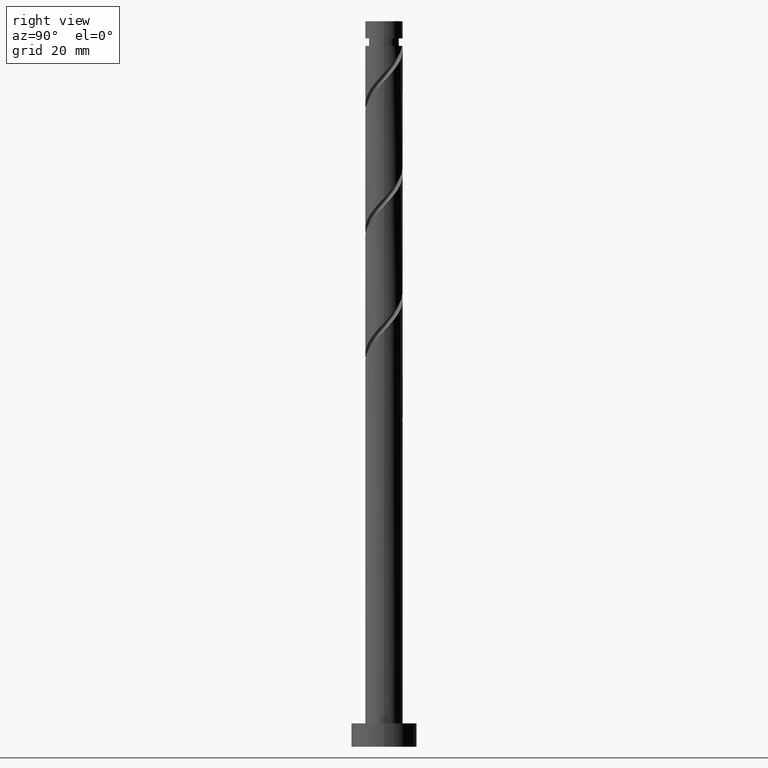
[diagram: clean part render]
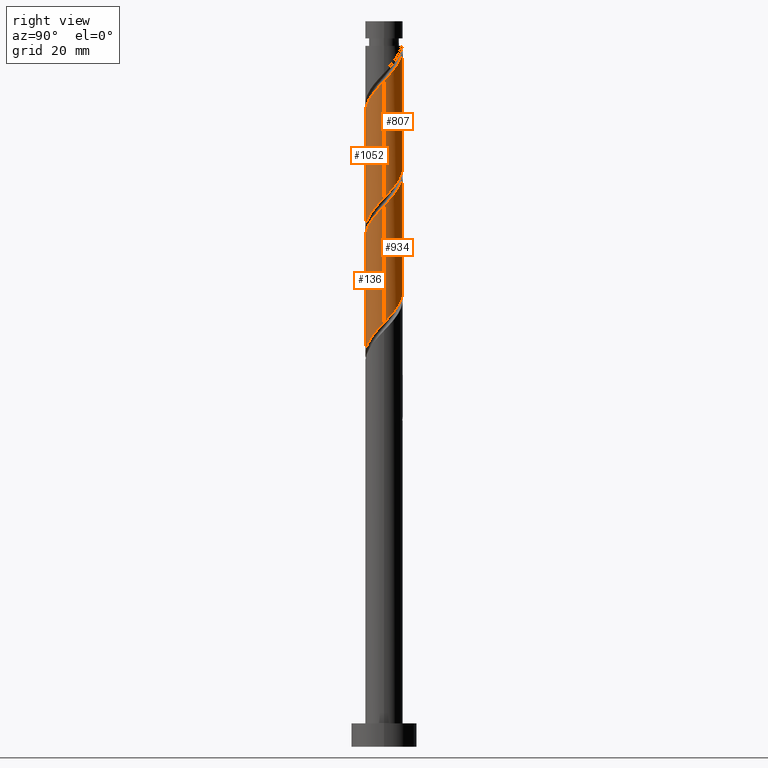
[diagram: same view with one multi-face feature highlighted, each face labeled with its STEP entity id]
A machine part, right view. The highlighted faces form ONE feature: a constant-radius fillet chain: 4 tangent blend faces with common blend radius 4 mm. The faces share edges in the B-rep.
Their STEP definitions:
[1] entity #136 (Cylinder):
#34 = DIRECTION ( 'NONE',  ( -0.000000000000000000, -0.000000000000000000, -1.000000000000000000 ) ) ;
#46 = DIRECTION ( 'NONE',  ( -1.000000000000000000, 0.000000000000000000, 0.000000000000000000 ) ) ;
#58 = CARTESIAN_POINT ( 'NONE',  ( -0.3406448590276058841, -3.985468740313755642, 108.5207611527799685 ) ) ;
#66 = ORIENTED_EDGE ( 'NONE', *, *, #1090, .F. ) ;
#70 = LINE ( 'NONE', #1353, #775 ) ;
#73 = CARTESIAN_POINT ( 'NONE',  ( 3.896423597087605994, -0.9043689247530174447, 114.5813672133860308 ) ) ;
#88 = CARTESIAN_POINT ( 'NONE',  ( 0.3406448590276037192, -3.985468740313750313, 84.27833691035573338 ) ) ;
#107 = CARTESIAN_POINT ( 'NONE',  ( 2.441275768804707980, -3.168623142730448095, 86.70257933459815547 ) ) ;
#119 = CARTESIAN_POINT ( 'NONE',  ( 0.9136687552802118528, -3.936491403624601926, 84.88439751641635667 ) ) ;
#129 = CYLINDRICAL_SURFACE ( 'NONE', #1137, 4.000000000000000000 ) ;
#136 = ADVANCED_FACE ( 'NONE', ( #1278 ), #129, .T. ) ;
#176 = CARTESIAN_POINT ( 'NONE',  ( 4.000000000000005329, 2.557616340297881178E-15, 115.5500945522669980 ) ) ;
#181 = DIRECTION ( 'NONE',  ( -0.000000000000000000, -0.000000000000000000, -1.000000000000000000 ) ) ;
#201 = CARTESIAN_POINT ( 'NONE',  ( 4.000000000000008882, -0.4581157095404825852, 115.0641345992956843 ) ) ;
#237 = CARTESIAN_POINT ( 'NONE',  ( 4.000000000000000888, -0.1151021060952927416, 90.46023883948387834 ) ) ;
#251 = CARTESIAN_POINT ( 'NONE',  ( -3.766394975944543422, -1.464590062224028433, 78.82379145581029434 ) ) ;
#307 = VERTEX_POINT ( 'NONE', #386 ) ;
#337 = CARTESIAN_POINT ( 'NONE',  ( 1.359600862145592615, -3.805553922997109595, 110.3389429709617957 ) ) ;
#339 = CARTESIAN_POINT ( 'NONE',  ( -4.000000000000000000, 0.000000000000000000, 155.0000000000000000 ) ) ;
#386 = CARTESIAN_POINT ( 'NONE',  ( 4.000000000000005329, 2.557616340297881178E-15, 115.5500945522669980 ) ) ;
#429 = CARTESIAN_POINT ( 'NONE',  ( 0.000000000000000000, 0.000000000000000000, 155.0000000000000000 ) ) ;
#431 = CARTESIAN_POINT ( 'NONE',  ( -1.985696539029938146, -3.519625607940459311, 106.7025793345981839 ) ) ;
#434 =( BOUNDED_CURVE ( )  B_SPLINE_CURVE ( 2, ( #502, #237, #858, #1608, #870, #893, #995, #1375, #107, #728, #616, #119, #88, #1395, #1141, #1238, #1485, #1127, #1117, #1493, #748, #251, #1257, #763, #1270 ),
 .UNSPECIFIED., .F., .T. ) 
 B_SPLINE_CURVE_WITH_KNOTS ( ( 3, 2, 2, 2, 2, 2, 2, 2, 2, 2, 2, 2, 3 ),
 ( 0.8045252162417513286, 0.8068181818181817677, 0.8181818181818182323, 0.8295454545454545858, 0.8409090909090909394, 0.8522727272727272929, 0.8636363636363636465, 0.8750000000000000000, 0.8863636363636363535, 0.8977272727272727071, 0.9090909090909090606, 0.9204545454545454142, 0.9295252162417513286 ),
 .UNSPECIFIED. ) 
 CURVE ( )  GEOMETRIC_REPRESENTATION_ITEM ( )  RATIONAL_B_SPLINE_CURVE ( ( 0.9061101570135567940, 0.9072237824201390133, 0.9090909090909164991, 0.8998376744372188485, 0.9090909090909164991, 0.8998376744372188485, 0.9090909090909164991, 0.8998376744372188485, 0.9090909090909164991, 0.8998376744372188485, 0.9090909090909164991, 0.8998376744372188485, 0.9090909090909164991, 0.8998376744372188485, 0.9090909090909164991, 0.8998376744372188485, 0.9090909090909164991, 0.8998376744372188485, 0.9090909090909164991, 0.8998376744372188485, 0.9090909090909164991, 0.8998376744372188485, 0.9090909090909164991, 0.9017048011079962233, 0.9061101570135567940 ) ) 
 REPRESENTATION_ITEM ( '' )  );
#445 = CARTESIAN_POINT ( 'NONE',  ( -2.896854998579486917, -2.817620677520442651, 105.4904581224769515 ) ) ;
#459 = ORIENTED_EDGE ( 'NONE', *, *, #1398, .T. ) ;
#463 = CARTESIAN_POINT ( 'NONE',  ( 2.788941361696814614, -2.867369191613936330, 112.1571247891436087 ) ) ;
#468 = VERTEX_POINT ( 'NONE', #1578 ) ;
#482 = VERTEX_POINT ( 'NONE', #1568 ) ;
#502 = CARTESIAN_POINT ( 'NONE',  ( 4.000000000000000888, -4.606700776676913527E-15, 90.58233684420208931 ) ) ;
#543 = EDGE_CURVE ( 'NONE', #307, #468, #70, .T. ) ;
#583 = CARTESIAN_POINT ( 'NONE',  ( -4.000000000000005329, -2.752055009443334096E-15, 102.2167612189336268 ) ) ;
#599 = CARTESIAN_POINT ( 'NONE',  ( -1.449682647155075665, -3.728058505782533505, 107.3086399406587930 ) ) ;
#616 = CARTESIAN_POINT ( 'NONE',  ( 1.449682647155072557, -3.728058505782528620, 85.49045812247693732 ) ) ;
#660 = ORIENTED_EDGE ( 'NONE', *, *, #736, .F. ) ;
#677 = VERTEX_POINT ( 'NONE', #1248 ) ;
#688 = CARTESIAN_POINT ( 'NONE',  ( -3.573327494404169524, -1.887348876843109702, 104.2783369103557334 ) ) ;
#719 = CARTESIAN_POINT ( 'NONE',  ( -4.000000000000006217, -0.1151021060952855390, 102.3388592236518519 ) ) ;
#728 = CARTESIAN_POINT ( 'NONE',  ( 1.985696539029934149, -3.519625607940456202, 86.09651872853757482 ) ) ;
#736 = EDGE_CURVE ( 'NONE', #468, #677, #434, .T. ) ;
#740 =( BOUNDED_CURVE ( )  B_SPLINE_CURVE ( 2, ( #583, #719, #834, #1356, #1340, #688, #1592, #445, #860, #431, #599, #973, #58, #1215, #1456, #337, #1221, #1101, #463, #1611, #1471, #827, #73, #201, #176 ),
 .UNSPECIFIED., .F., .T. ) 
 B_SPLINE_CURVE_WITH_KNOTS ( ( 3, 2, 2, 2, 2, 2, 2, 2, 2, 2, 2, 2, 3 ),
 ( 0.3045252162417512176, 0.3068181818181817677, 0.3181818181818182323, 0.3295454545454545858, 0.3409090909090909394, 0.3522727272727272929, 0.3636363636363636465, 0.3750000000000000000, 0.3863636363636363535, 0.3977272727272727071, 0.4090909090909090606, 0.4204545454545454142, 0.4295252162417514952 ),
 .UNSPECIFIED. ) 
 CURVE ( )  GEOMETRIC_REPRESENTATION_ITEM ( )  RATIONAL_B_SPLINE_CURVE ( ( 0.9061101570135621230, 0.9072237824201443424, 0.9090909090909219392, 0.8998376744372241776, 0.9090909090909219392, 0.8998376744372241776, 0.9090909090909219392, 0.8998376744372241776, 0.9090909090909219392, 0.8998376744372241776, 0.9090909090909219392, 0.8998376744372241776, 0.9090909090909219392, 0.8998376744372241776, 0.9090909090909219392, 0.8998376744372241776, 0.9090909090909219392, 0.8998376744372241776, 0.9090909090909219392, 0.8998376744372241776, 0.9090909090909219392, 0.8998376744372241776, 0.9090909090909219392, 0.9017048011080015524, 0.9061101570135624561 ) ) 
 REPRESENTATION_ITEM ( '' )  );
#748 = CARTESIAN_POINT ( 'NONE',  ( -3.483800894132676351, -1.965485011400587068, 79.42985206187090341 ) ) ;
#763 = CARTESIAN_POINT ( 'NONE',  ( -4.000000000000001776, -0.4581157095404894686, 77.73496346384007438 ) ) ;
#775 = VECTOR ( 'NONE', #34, 1000.000000000000000 ) ;
#827 = CARTESIAN_POINT ( 'NONE',  ( 3.766394975944548751, -1.464590062224029987, 113.9753066073254217 ) ) ;
#834 = CARTESIAN_POINT ( 'NONE',  ( -3.993381233129885466, -0.2300137536889534373, 102.4601550921739346 ) ) ;
#858 = CARTESIAN_POINT ( 'NONE',  ( 3.993381233129879693, -0.2300137536889547418, 90.33894297096179571 ) ) ;
#860 = CARTESIAN_POINT ( 'NONE',  ( -2.441275768804712420, -3.168623142730450759, 106.0965187285375464 ) ) ;
#870 = CARTESIAN_POINT ( 'NONE',  ( 3.766818871216632836, -1.345762085751509129, 89.12682175884057756 ) ) ;
#893 = CARTESIAN_POINT ( 'NONE',  ( 3.573327494404164639, -1.887348876843107703, 88.52076115277996848 ) ) ;
#944 = EDGE_LOOP ( 'NONE', ( #1039, #66, #459, #660 ) ) ;
#973 = CARTESIAN_POINT ( 'NONE',  ( -0.9136687552802127410, -3.936491403624608143, 107.9147005467193878 ) ) ;
#995 = CARTESIAN_POINT ( 'NONE',  ( 3.235091246491824002, -2.352484777181773179, 87.91470054671937362 ) ) ;
#1039 = ORIENTED_EDGE ( 'NONE', *, *, #543, .F. ) ;
#1090 = EDGE_CURVE ( 'NONE', #482, #307, #740, .T. ) ;
#1101 = CARTESIAN_POINT ( 'NONE',  ( 2.376675911072817282, -3.268358422650720740, 111.5510641830830139 ) ) ;
#1117 = CARTESIAN_POINT ( 'NONE',  ( -2.788941361696812393, -2.867369191613931001, 80.64197327399209314 ) ) ;
#1127 = CARTESIAN_POINT ( 'NONE',  ( -2.376675911072814618, -3.268358422650716744, 81.24803388005270222 ) ) ;
#1137 = AXIS2_PLACEMENT_3D ( 'NONE', #429, #181, #46 ) ;
#1141 = CARTESIAN_POINT ( 'NONE',  ( -0.7959899496852971268, -3.919999999999999929, 83.06621569823454365 ) ) ;
#1215 = CARTESIAN_POINT ( 'NONE',  ( 0.2323790372250007230, -4.034446077002900921, 109.1268217588405918 ) ) ;
#1221 = CARTESIAN_POINT ( 'NONE',  ( 1.868138386609204726, -3.536956172823916056, 110.9450035770224048 ) ) ;
#1238 = CARTESIAN_POINT ( 'NONE',  ( -1.359600862145591949, -3.805553922997103822, 82.46015509217393458 ) ) ;
#1248 = CARTESIAN_POINT ( 'NONE',  ( -4.000000000000000888, 3.769118817281110637E-15, 77.24900351086876071 ) ) ;
#1257 = CARTESIAN_POINT ( 'NONE',  ( -3.896423597087600665, -0.9043689247530153352, 78.21773084974967105 ) ) ;
#1270 = CARTESIAN_POINT ( 'NONE',  ( -4.000000000000000888, 3.769118817281110637E-15, 77.24900351086877492 ) ) ;
#1278 = FACE_OUTER_BOUND ( 'NONE', #944, .T. ) ;
#1336 = DIRECTION ( 'NONE',  ( -0.000000000000000000, -0.000000000000000000, -1.000000000000000000 ) ) ;
#1340 = CARTESIAN_POINT ( 'NONE',  ( -3.766818871216639053, -1.345762085751509796, 103.6722763042951669 ) ) ;
#1353 = CARTESIAN_POINT ( 'NONE',  ( 4.000000000000000000, 4.898587196589412829E-16, 155.0000000000000000 ) ) ;
#1356 = CARTESIAN_POINT ( 'NONE',  ( -3.960310248029106805, -0.8041752946599106666, 103.0662156982345152 ) ) ;
#1371 = VECTOR ( 'NONE', #1336, 1000.000000000000000 ) ;
#1375 = CARTESIAN_POINT ( 'NONE',  ( 2.896854998579484253, -2.817620677520439987, 87.30863994065877876 ) ) ;
#1395 = CARTESIAN_POINT ( 'NONE',  ( -0.2323790372250022218, -4.034446077002896480, 83.67227630429516694 ) ) ;
#1398 = EDGE_CURVE ( 'NONE', #482, #677, #1459, .T. ) ;
#1456 = CARTESIAN_POINT ( 'NONE',  ( 0.7959899496852965717, -3.920000000000005702, 109.7328823649012008 ) ) ;
#1459 = LINE ( 'NONE', #339, #1371 ) ;
#1471 = CARTESIAN_POINT ( 'NONE',  ( 3.483800894132681236, -1.965485011400590842, 113.3692460012648553 ) ) ;
#1485 = CARTESIAN_POINT ( 'NONE',  ( -1.868138386609203616, -3.536956172823910727, 81.85409448611332550 ) ) ;
#1493 = CARTESIAN_POINT ( 'NONE',  ( -3.201206812320810169, -2.466379960577145702, 80.03591266793148407 ) ) ;
#1568 = CARTESIAN_POINT ( 'NONE',  ( -4.000000000000005329, -2.752055009443334096E-15, 102.2167612189336268 ) ) ;
#1578 = CARTESIAN_POINT ( 'NONE',  ( 4.000000000000000888, -4.606700776676913527E-15, 90.58233684420208931 ) ) ;
#1592 = CARTESIAN_POINT ( 'NONE',  ( -3.235091246491827999, -2.352484777181776288, 104.8843975164163567 ) ) ;
#1608 = CARTESIAN_POINT ( 'NONE',  ( 3.960310248029102365, -0.8041752946599112217, 89.73288236490118663 ) ) ;
#1611 = CARTESIAN_POINT ( 'NONE',  ( 3.201206812320812833, -2.466379960577149699, 112.7631853952042178 ) ) ;
[2] entity #934 (Cylinder):
#34 = DIRECTION ( 'NONE',  ( -0.000000000000000000, -0.000000000000000000, -1.000000000000000000 ) ) ;
#38 = CARTESIAN_POINT ( 'NONE',  ( 2.376675911072815062, 3.268358422650716744, 94.58136721338605923 ) ) ;
#54 = CARTESIAN_POINT ( 'NONE',  ( -4.000000000000000888, 3.769118817281110637E-15, 103.9156701775354179 ) ) ;
#62 = CARTESIAN_POINT ( 'NONE',  ( 2.441275768804711976, 3.168623142730452091, 119.4298520618709034 ) ) ;
#70 = LINE ( 'NONE', #1353, #775 ) ;
#85 = CARTESIAN_POINT ( 'NONE',  ( -2.788941361696814614, 2.867369191613936330, 125.4904581224769657 ) ) ;
#131 = CARTESIAN_POINT ( 'NONE',  ( 4.000000000000000888, -4.606700776676913527E-15, 90.58233684420208931 ) ) ;
#140 = EDGE_CURVE ( 'NONE', #174, #468, #1576, .T. ) ;
#147 = CARTESIAN_POINT ( 'NONE',  ( 4.000000000000001776, 0.4581157095404880808, 91.06829679717338877 ) ) ;
#174 = VERTEX_POINT ( 'NONE', #1034 ) ;
#188 = CARTESIAN_POINT ( 'NONE',  ( -3.483800894132681236, 1.965485011400590398, 126.7025793345981555 ) ) ;
#190 = CARTESIAN_POINT ( 'NONE',  ( -3.960310248029102365, 0.8041752946599105556, 103.0662156982345437 ) ) ;
#205 = CARTESIAN_POINT ( 'NONE',  ( 1.985696539029936369, 3.519625607940460643, 120.0359126679314983 ) ) ;
#213 = CARTESIAN_POINT ( 'NONE',  ( -3.201206812320813277, 2.466379960577148367, 126.0965187285375606 ) ) ;
#224 = CARTESIAN_POINT ( 'NONE',  ( -3.896423597087605994, 0.9043689247530175557, 127.9147005467193452 ) ) ;
#307 = VERTEX_POINT ( 'NONE', #386 ) ;
#317 = CARTESIAN_POINT ( 'NONE',  ( -0.2323790372250002234, 4.034446077002900921, 122.4601550921738919 ) ) ;
#324 = CARTESIAN_POINT ( 'NONE',  ( -1.359600862145593503, 3.805553922997108707, 123.6722763042951243 ) ) ;
#332 = CARTESIAN_POINT ( 'NONE',  ( 4.000000000000005329, 0.1151021060952991948, 115.6721925569852374 ) ) ;
#348 = VECTOR ( 'NONE', #1521, 1000.000000000000000 ) ;
#382 = EDGE_LOOP ( 'NONE', ( #1203, #1612, #693, #481 ) ) ;
#386 = CARTESIAN_POINT ( 'NONE',  ( 4.000000000000005329, 2.557616340297881178E-15, 115.5500945522669980 ) ) ;
#392 = CYLINDRICAL_SURFACE ( 'NONE', #1657, 4.000000000000000000 ) ;
#457 = CARTESIAN_POINT ( 'NONE',  ( 3.573327494404170412, 1.887348876843108370, 117.6116702436890762 ) ) ;
#468 = VERTEX_POINT ( 'NONE', #1578 ) ;
#481 = ORIENTED_EDGE ( 'NONE', *, *, #1651, .F. ) ;
#528 = FACE_OUTER_BOUND ( 'NONE', #382, .T. ) ;
#543 = EDGE_CURVE ( 'NONE', #307, #468, #70, .T. ) ;
#563 = CARTESIAN_POINT ( 'NONE',  ( -3.993381233129879693, 0.2300137536889541867, 103.6722763042951385 ) ) ;
#575 = CARTESIAN_POINT ( 'NONE',  ( -1.985696539029934815, 3.519625607940455758, 99.42985206187090341 ) ) ;
#593 = CARTESIAN_POINT ( 'NONE',  ( 3.766818871216639053, 1.345762085751509574, 117.0056096376284955 ) ) ;
#693 = ORIENTED_EDGE ( 'NONE', *, *, #140, .F. ) ;
#703 = CARTESIAN_POINT ( 'NONE',  ( -1.449682647155072557, 3.728058505782528620, 98.82379145581026592 ) ) ;
#775 = VECTOR ( 'NONE', #34, 1000.000000000000000 ) ;
#824 = CARTESIAN_POINT ( 'NONE',  ( -2.896854998579482920, 2.817620677520439987, 100.6419732739921358 ) ) ;
#830 = CARTESIAN_POINT ( 'NONE',  ( -2.376675911072817282, 3.268358422650721629, 124.8843975164163567 ) ) ;
#832 = CARTESIAN_POINT ( 'NONE',  ( -3.573327494404164639, 1.887348876843108147, 101.8540944861133255 ) ) ;
#838 = CARTESIAN_POINT ( 'NONE',  ( 3.993381233129885466, 0.2300137536889530487, 115.7934884255072774 ) ) ;
#848 = CARTESIAN_POINT ( 'NONE',  ( 3.960310248029106805, 0.8041752946599101115, 116.3995490315678438 ) ) ;
#855 = CARTESIAN_POINT ( 'NONE',  ( -3.766394975944548307, 1.464590062224031541, 127.3086399406587788 ) ) ;
#863 = CARTESIAN_POINT ( 'NONE',  ( 3.766394975944543866, 1.464590062224026212, 92.15712478914363714 ) ) ;
#864 = CARTESIAN_POINT ( 'NONE',  ( 0.3406448590276063282, 3.985468740313755642, 121.8540944861132971 ) ) ;
#913 = CARTESIAN_POINT ( 'NONE',  ( 3.896423597087600665, 0.9043689247530143360, 91.55106418308302807 ) ) ;
#918 = DIRECTION ( 'NONE',  ( -1.000000000000000000, 0.000000000000000000, 0.000000000000000000 ) ) ;
#934 = ADVANCED_FACE ( 'NONE', ( #528 ), #392, .T. ) ;
#954 = CARTESIAN_POINT ( 'NONE',  ( -3.766818871216632836, 1.345762085751508463, 102.4601550921739204 ) ) ;
#965 = CARTESIAN_POINT ( 'NONE',  ( -4.000000000000000000, 0.1151021060952975572, 103.7935721728171927 ) ) ;
#981 = CARTESIAN_POINT ( 'NONE',  ( -4.000000000000005329, -2.752055009443334096E-15, 128.8834278856002982 ) ) ;
#1034 = CARTESIAN_POINT ( 'NONE',  ( -4.000000000000000888, 3.769118817281110637E-15, 103.9156701775354179 ) ) ;
#1066 = CARTESIAN_POINT ( 'NONE',  ( 2.788941361696811949, 2.867369191613931445, 93.97530660732543595 ) ) ;
#1082 = CARTESIAN_POINT ( 'NONE',  ( -0.9136687552802111867, 3.936491403624602814, 98.21773084974967105 ) ) ;
#1088 = CARTESIAN_POINT ( 'NONE',  ( 4.000000000000005329, 2.557616340297881178E-15, 115.5500945522669980 ) ) ;
#1096 = CARTESIAN_POINT ( 'NONE',  ( -4.000000000000005329, -2.752055009443334096E-15, 128.8834278856002982 ) ) ;
#1144 =( BOUNDED_CURVE ( )  B_SPLINE_CURVE ( 2, ( #1088, #332, #838, #848, #593, #457, #1233, #1344, #62, #205, #1468, #1482, #864, #317, #1588, #324, #1372, #830, #85, #213, #188, #855, #224, #1360, #1096 ),
 .UNSPECIFIED., .F., .T. ) 
 B_SPLINE_CURVE_WITH_KNOTS ( ( 3, 2, 2, 2, 2, 2, 2, 2, 2, 2, 2, 2, 3 ),
 ( 0.4295252162417514952, 0.4318181818181817677, 0.4431818181818182323, 0.4545454545454545858, 0.4659090909090909394, 0.4772727272727272929, 0.4886363636363636465, 0.5000000000000000000, 0.5113636363636363535, 0.5227272727272727071, 0.5340909090909091717, 0.5454545454545454142, 0.5545252162417514397 ),
 .UNSPECIFIED. ) 
 CURVE ( )  GEOMETRIC_REPRESENTATION_ITEM ( )  RATIONAL_B_SPLINE_CURVE ( ( 0.9061101570135624561, 0.9072237824201445644, 0.9090909090909219392, 0.8998376744372241776, 0.9090909090909219392, 0.8998376744372241776, 0.9090909090909219392, 0.8998376744372241776, 0.9090909090909219392, 0.8998376744372241776, 0.9090909090909219392, 0.8998376744372241776, 0.9090909090909219392, 0.8998376744372241776, 0.9090909090909219392, 0.8998376744372241776, 0.9090909090909219392, 0.8998376744372241776, 0.9090909090909219392, 0.8998376744372241776, 0.9090909090909219392, 0.8998376744372241776, 0.9090909090909219392, 0.9017048011080016634, 0.9061101570135622341 ) ) 
 REPRESENTATION_ITEM ( '' )  );
#1152 = VERTEX_POINT ( 'NONE', #981 ) ;
#1186 = CARTESIAN_POINT ( 'NONE',  ( 1.359600862145592615, 3.805553922997103378, 95.79348842550726317 ) ) ;
#1202 = CARTESIAN_POINT ( 'NONE',  ( -3.235091246491823558, 2.352484777181774511, 101.2480338800527448 ) ) ;
#1203 = ORIENTED_EDGE ( 'NONE', *, *, #1467, .F. ) ;
#1205 = CARTESIAN_POINT ( 'NONE',  ( 1.868138386609203838, 3.536956172823910727, 95.18742781944668252 ) ) ;
#1214 = CARTESIAN_POINT ( 'NONE',  ( 3.201206812320808837, 2.466379960577145702, 93.36924600126482687 ) ) ;
#1233 = CARTESIAN_POINT ( 'NONE',  ( 3.235091246491828887, 2.352484777181775399, 118.2177308497496853 ) ) ;
#1305 = DIRECTION ( 'NONE',  ( -0.000000000000000000, -0.000000000000000000, -1.000000000000000000 ) ) ;
#1332 = CARTESIAN_POINT ( 'NONE',  ( 0.7959899496852975709, 3.919999999999999929, 96.39954903156787225 ) ) ;
#1338 = CARTESIAN_POINT ( 'NONE',  ( -2.441275768804708868, 3.168623142730448095, 100.0359126679314841 ) ) ;
#1344 = CARTESIAN_POINT ( 'NONE',  ( 2.896854998579489138, 2.817620677520440875, 118.8237914558102659 ) ) ;
#1353 = CARTESIAN_POINT ( 'NONE',  ( 4.000000000000000000, 4.898587196589412829E-16, 155.0000000000000000 ) ) ;
#1360 = CARTESIAN_POINT ( 'NONE',  ( -4.000000000000007105, 0.4581157095404897461, 128.3974679326290129 ) ) ;
#1372 = CARTESIAN_POINT ( 'NONE',  ( -1.868138386609205837, 3.536956172823915612, 124.2783369103557476 ) ) ;
#1438 = CARTESIAN_POINT ( 'NONE',  ( 0.000000000000000000, 0.000000000000000000, 155.0000000000000000 ) ) ;
#1462 = CARTESIAN_POINT ( 'NONE',  ( 0.2323790372250010838, 4.034446077002895592, 97.00560963762845290 ) ) ;
#1467 = EDGE_CURVE ( 'NONE', #307, #1152, #1144, .T. ) ;
#1468 = CARTESIAN_POINT ( 'NONE',  ( 1.449682647155074333, 3.728058505782534393, 120.6419732739921358 ) ) ;
#1482 = CARTESIAN_POINT ( 'NONE',  ( 0.9136687552802131851, 3.936491403624606811, 121.2480338800526880 ) ) ;
#1521 = DIRECTION ( 'NONE',  ( -0.000000000000000000, -0.000000000000000000, -1.000000000000000000 ) ) ;
#1576 =( BOUNDED_CURVE ( )  B_SPLINE_CURVE ( 2, ( #54, #965, #563, #190, #954, #832, #1202, #824, #1338, #575, #703, #1082, #1583, #1462, #1332, #1186, #1205, #38, #1066, #1214, #1591, #863, #913, #147, #131 ),
 .UNSPECIFIED., .F., .T. ) 
 B_SPLINE_CURVE_WITH_KNOTS ( ( 3, 2, 2, 2, 2, 2, 2, 2, 2, 2, 2, 2, 3 ),
 ( 0.6795252162417514397, 0.6818181818181817677, 0.6931818181818182323, 0.7045454545454545858, 0.7159090909090909394, 0.7272727272727272929, 0.7386363636363636465, 0.7500000000000000000, 0.7613636363636363535, 0.7727272727272727071, 0.7840909090909090606, 0.7954545454545454142, 0.8045252162417513286 ),
 .UNSPECIFIED. ) 
 CURVE ( )  GEOMETRIC_REPRESENTATION_ITEM ( )  RATIONAL_B_SPLINE_CURVE ( ( 0.9061101570135570160, 0.9072237824201392353, 0.9090909090909164991, 0.8998376744372188485, 0.9090909090909164991, 0.8998376744372188485, 0.9090909090909164991, 0.8998376744372188485, 0.9090909090909164991, 0.8998376744372188485, 0.9090909090909164991, 0.8998376744372188485, 0.9090909090909164991, 0.8998376744372188485, 0.9090909090909164991, 0.8998376744372188485, 0.9090909090909164991, 0.8998376744372188485, 0.9090909090909164991, 0.8998376744372188485, 0.9090909090909164991, 0.8998376744372188485, 0.9090909090909164991, 0.9017048011079962233, 0.9061101570135567940 ) ) 
 REPRESENTATION_ITEM ( '' )  );
#1578 = CARTESIAN_POINT ( 'NONE',  ( 4.000000000000000888, -4.606700776676913527E-15, 90.58233684420208931 ) ) ;
#1583 = CARTESIAN_POINT ( 'NONE',  ( -0.3406448590276049404, 3.985468740313750313, 97.61167024368909040 ) ) ;
#1588 = CARTESIAN_POINT ( 'NONE',  ( -0.7959899496852962386, 3.920000000000005702, 123.0662156982345152 ) ) ;
#1591 = CARTESIAN_POINT ( 'NONE',  ( 3.483800894132676351, 1.965485011400587290, 92.76318539520423201 ) ) ;
#1612 = ORIENTED_EDGE ( 'NONE', *, *, #543, .T. ) ;
#1625 = LINE ( 'NONE', #1635, #348 ) ;
#1635 = CARTESIAN_POINT ( 'NONE',  ( -4.000000000000000000, 0.000000000000000000, 155.0000000000000000 ) ) ;
#1651 = EDGE_CURVE ( 'NONE', #1152, #174, #1625, .T. ) ;
#1657 = AXIS2_PLACEMENT_3D ( 'NONE', #1438, #1305, #918 ) ;
[3] entity #1052 (Cylinder):
#8 = CARTESIAN_POINT ( 'NONE',  ( -2.441275768804712420, -3.168623142730450759, 132.7631853952042320 ) ) ;
#16 = CARTESIAN_POINT ( 'NONE',  ( 3.960310248029102365, -0.8041752946599112217, 116.3995490315678722 ) ) ;
#39 = CARTESIAN_POINT ( 'NONE',  ( 1.359600862145592615, -3.805553922997109595, 137.0056096376284813 ) ) ;
#49 = CARTESIAN_POINT ( 'NONE',  ( -0.7959899496852971268, -3.919999999999999929, 109.7328823649011724 ) ) ;
#65 = CARTESIAN_POINT ( 'NONE',  ( 1.985696539029934149, -3.519625607940456202, 112.7631853952042320 ) ) ;
#81 = CARTESIAN_POINT ( 'NONE',  ( -4.000000000000002665, -0.4581157095404838620, 104.4016301305067032 ) ) ;
#109 = EDGE_CURVE ( 'NONE', #749, #1313, #253, .T. ) ;
#127 = ORIENTED_EDGE ( 'NONE', *, *, #787, .F. ) ;
#174 = VERTEX_POINT ( 'NONE', #1034 ) ;
#185 = CARTESIAN_POINT ( 'NONE',  ( -2.376675911072814618, -3.268358422650716744, 107.9147005467194020 ) ) ;
#193 = CARTESIAN_POINT ( 'NONE',  ( -3.483800894132676351, -1.965485011400587068, 106.0965187285375606 ) ) ;
#207 = EDGE_LOOP ( 'NONE', ( #1384, #127, #417, #1548 ) ) ;
#211 = DIRECTION ( 'NONE',  ( -0.000000000000000000, -0.000000000000000000, -1.000000000000000000 ) ) ;
#253 = LINE ( 'NONE', #1527, #1265 ) ;
#275 = CARTESIAN_POINT ( 'NONE',  ( -1.985696539029938146, -3.519625607940459311, 133.3692460012648269 ) ) ;
#300 = CARTESIAN_POINT ( 'NONE',  ( 3.483800894132681236, -1.965485011400590842, 140.0359126679315125 ) ) ;
#311 = CARTESIAN_POINT ( 'NONE',  ( 4.000000000000000888, -4.606700776676913527E-15, 117.2490035108687465 ) ) ;
#321 = DIRECTION ( 'NONE',  ( -1.000000000000000000, 0.000000000000000000, 0.000000000000000000 ) ) ;
#348 = VECTOR ( 'NONE', #1521, 1000.000000000000000 ) ;
#385 = CARTESIAN_POINT ( 'NONE',  ( -3.573327494404169524, -1.887348876843109702, 130.9450035770224190 ) ) ;
#403 = CARTESIAN_POINT ( 'NONE',  ( -3.993381233129885466, -0.2300137536889534373, 129.1268217588406060 ) ) ;
#417 = ORIENTED_EDGE ( 'NONE', *, *, #1651, .T. ) ;
#440 = CARTESIAN_POINT ( 'NONE',  ( 0.9136687552802118528, -3.936491403624601926, 111.5510641830830281 ) ) ;
#454 = CARTESIAN_POINT ( 'NONE',  ( -3.766394975944543422, -1.464590062224028433, 105.4904581224769373 ) ) ;
#536 = CARTESIAN_POINT ( 'NONE',  ( 2.788941361696814614, -2.867369191613936330, 138.8237914558102943 ) ) ;
#540 = AXIS2_PLACEMENT_3D ( 'NONE', #1585, #211, #321 ) ;
#571 =( BOUNDED_CURVE ( )  B_SPLINE_CURVE ( 2, ( #1316, #662, #1167, #16, #1048, #1551, #1092, #1487, #1231, #65, #957, #440, #1464, #1206, #49, #843, #1110, #185, #1077, #988, #193, #454, #1577, #81, #705 ),
 .UNSPECIFIED., .F., .T. ) 
 B_SPLINE_CURVE_WITH_KNOTS ( ( 3, 2, 2, 2, 2, 2, 2, 2, 2, 2, 2, 2, 3 ),
 ( 0.5545252162417513286, 0.5568181818181817677, 0.5681818181818182323, 0.5795454545454545858, 0.5909090909090909394, 0.6022727272727272929, 0.6136363636363636465, 0.6250000000000000000, 0.6363636363636363535, 0.6477272727272727071, 0.6590909090909090606, 0.6704545454545454142, 0.6795252162417514397 ),
 .UNSPECIFIED. ) 
 CURVE ( )  GEOMETRIC_REPRESENTATION_ITEM ( )  RATIONAL_B_SPLINE_CURVE ( ( 0.9061101570135567940, 0.9072237824201390133, 0.9090909090909164991, 0.8998376744372188485, 0.9090909090909164991, 0.8998376744372188485, 0.9090909090909164991, 0.8998376744372188485, 0.9090909090909164991, 0.8998376744372188485, 0.9090909090909164991, 0.8998376744372188485, 0.9090909090909164991, 0.8998376744372188485, 0.9090909090909164991, 0.8998376744372188485, 0.9090909090909164991, 0.8998376744372188485, 0.9090909090909164991, 0.8998376744372188485, 0.9090909090909164991, 0.8998376744372188485, 0.9090909090909164991, 0.9017048011079962233, 0.9061101570135570160 ) ) 
 REPRESENTATION_ITEM ( '' )  );
#590 = FACE_OUTER_BOUND ( 'NONE', #207, .T. ) ;
#637 = CARTESIAN_POINT ( 'NONE',  ( 4.000000000000005329, 2.557616340297881178E-15, 142.2167612189336410 ) ) ;
#654 = CARTESIAN_POINT ( 'NONE',  ( 2.376675911072817282, -3.268358422650720740, 138.2177308497496711 ) ) ;
#662 = CARTESIAN_POINT ( 'NONE',  ( 4.000000000000000888, -0.1151021060952927416, 117.1269055061505071 ) ) ;
#680 = CARTESIAN_POINT ( 'NONE',  ( -3.235091246491827999, -2.352484777181776288, 131.5510641830829854 ) ) ;
#705 = CARTESIAN_POINT ( 'NONE',  ( -4.000000000000000888, 3.769118817281110637E-15, 103.9156701775354179 ) ) ;
#711 = CYLINDRICAL_SURFACE ( 'NONE', #540, 4.000000000000000000 ) ;
#749 = VERTEX_POINT ( 'NONE', #637 ) ;
#765 = DIRECTION ( 'NONE',  ( -0.000000000000000000, -0.000000000000000000, -1.000000000000000000 ) ) ;
#781 = CARTESIAN_POINT ( 'NONE',  ( 4.000000000000004441, -0.4581157095405006818, 141.7308012659622989 ) ) ;
#787 = EDGE_CURVE ( 'NONE', #1152, #749, #1359, .T. ) ;
#808 = CARTESIAN_POINT ( 'NONE',  ( 4.000000000000005329, 2.557616340297881178E-15, 142.2167612189336410 ) ) ;
#818 = CARTESIAN_POINT ( 'NONE',  ( 3.896423597087605994, -0.9043689247530174447, 141.2480338800527591 ) ) ;
#843 = CARTESIAN_POINT ( 'NONE',  ( -1.359600862145591949, -3.805553922997103822, 109.1268217588406344 ) ) ;
#925 = CARTESIAN_POINT ( 'NONE',  ( -3.960310248029106805, -0.8041752946599106666, 129.7328823649011724 ) ) ;
#947 = CARTESIAN_POINT ( 'NONE',  ( 0.7959899496852965717, -3.920000000000005702, 136.3995490315678012 ) ) ;
#957 = CARTESIAN_POINT ( 'NONE',  ( 1.449682647155072557, -3.728058505782528620, 112.1571247891436087 ) ) ;
#981 = CARTESIAN_POINT ( 'NONE',  ( -4.000000000000005329, -2.752055009443334096E-15, 128.8834278856002982 ) ) ;
#988 = CARTESIAN_POINT ( 'NONE',  ( -3.201206812320810169, -2.466379960577145702, 106.7025793345981413 ) ) ;
#1033 = CARTESIAN_POINT ( 'NONE',  ( 3.201206812320812833, -2.466379960577149699, 139.4298520618708608 ) ) ;
#1034 = CARTESIAN_POINT ( 'NONE',  ( -4.000000000000000888, 3.769118817281110637E-15, 103.9156701775354179 ) ) ;
#1035 = EDGE_CURVE ( 'NONE', #1313, #174, #571, .T. ) ;
#1041 = CARTESIAN_POINT ( 'NONE',  ( 1.868138386609204726, -3.536956172823916056, 137.6116702436890478 ) ) ;
#1048 = CARTESIAN_POINT ( 'NONE',  ( 3.766818871216632836, -1.345762085751509129, 115.7934884255072348 ) ) ;
#1052 = ADVANCED_FACE ( 'NONE', ( #590 ), #711, .T. ) ;
#1057 = CARTESIAN_POINT ( 'NONE',  ( 0.2323790372250007230, -4.034446077002900921, 135.7934884255072916 ) ) ;
#1067 = CARTESIAN_POINT ( 'NONE',  ( 3.766394975944548751, -1.464590062224029987, 140.6419732739920505 ) ) ;
#1077 = CARTESIAN_POINT ( 'NONE',  ( -2.788941361696812393, -2.867369191613931001, 107.3086399406587645 ) ) ;
#1092 = CARTESIAN_POINT ( 'NONE',  ( 3.235091246491824002, -2.352484777181773179, 114.5813672133860450 ) ) ;
#1110 = CARTESIAN_POINT ( 'NONE',  ( -1.868138386609203616, -3.536956172823910727, 108.5207611527799827 ) ) ;
#1152 = VERTEX_POINT ( 'NONE', #981 ) ;
#1154 = CARTESIAN_POINT ( 'NONE',  ( -4.000000000000005329, -0.1151021060952922559, 129.0055258903185518 ) ) ;
#1167 = CARTESIAN_POINT ( 'NONE',  ( 3.993381233129879693, -0.2300137536889547418, 117.0056096376284529 ) ) ;
#1174 = CARTESIAN_POINT ( 'NONE',  ( -0.3406448590276058841, -3.985468740313755642, 135.1874278194466683 ) ) ;
#1206 = CARTESIAN_POINT ( 'NONE',  ( -0.2323790372250022218, -4.034446077002896480, 110.3389429709618241 ) ) ;
#1231 = CARTESIAN_POINT ( 'NONE',  ( 2.441275768804707980, -3.168623142730448095, 113.3692460012648411 ) ) ;
#1265 = VECTOR ( 'NONE', #765, 1000.000000000000000 ) ;
#1313 = VERTEX_POINT ( 'NONE', #311 ) ;
#1316 = CARTESIAN_POINT ( 'NONE',  ( 4.000000000000000888, -4.606700776676913527E-15, 117.2490035108687465 ) ) ;
#1325 = CARTESIAN_POINT ( 'NONE',  ( -3.766818871216639053, -1.345762085751509796, 130.3389429709618241 ) ) ;
#1359 =( BOUNDED_CURVE ( )  B_SPLINE_CURVE ( 2, ( #1542, #1154, #403, #925, #1325, #385, #680, #1430, #8, #275, #1535, #1447, #1174, #1057, #947, #39, #1041, #654, #536, #1033, #300, #1067, #818, #781, #808 ),
 .UNSPECIFIED., .F., .T. ) 
 B_SPLINE_CURVE_WITH_KNOTS ( ( 3, 2, 2, 2, 2, 2, 2, 2, 2, 2, 2, 2, 3 ),
 ( 0.5545252162417514397, 0.5568181818181818787, 0.5681818181818181213, 0.5795454545454545858, 0.5909090909090908283, 0.6022727272727272929, 0.6136363636363636465, 0.6250000000000000000, 0.6363636363636363535, 0.6477272727272727071, 0.6590909090909091717, 0.6704545454545454142, 0.6795252162417512176 ),
 .UNSPECIFIED. ) 
 CURVE ( )  GEOMETRIC_REPRESENTATION_ITEM ( )  RATIONAL_B_SPLINE_CURVE ( ( 0.9061101570135622341, 0.9072237824201444534, 0.9090909090909219392, 0.8998376744372241776, 0.9090909090909219392, 0.8998376744372241776, 0.9090909090909219392, 0.8998376744372241776, 0.9090909090909219392, 0.8998376744372241776, 0.9090909090909219392, 0.8998376744372241776, 0.9090909090909219392, 0.8998376744372241776, 0.9090909090909219392, 0.8998376744372241776, 0.9090909090909219392, 0.8998376744372241776, 0.9090909090909219392, 0.8998376744372241776, 0.9090909090909219392, 0.8998376744372241776, 0.9090909090909219392, 0.9017048011080018854, 0.9061101570135621230 ) ) 
 REPRESENTATION_ITEM ( '' )  );
#1384 = ORIENTED_EDGE ( 'NONE', *, *, #109, .F. ) ;
#1430 = CARTESIAN_POINT ( 'NONE',  ( -2.896854998579486917, -2.817620677520442651, 132.1571247891436371 ) ) ;
#1447 = CARTESIAN_POINT ( 'NONE',  ( -0.9136687552802127410, -3.936491403624608143, 134.5813672133860166 ) ) ;
#1464 = CARTESIAN_POINT ( 'NONE',  ( 0.3406448590276037192, -3.985468740313750313, 110.9450035770224190 ) ) ;
#1487 = CARTESIAN_POINT ( 'NONE',  ( 2.896854998579484253, -2.817620677520439987, 113.9753066073254217 ) ) ;
#1521 = DIRECTION ( 'NONE',  ( -0.000000000000000000, -0.000000000000000000, -1.000000000000000000 ) ) ;
#1527 = CARTESIAN_POINT ( 'NONE',  ( 4.000000000000000000, 4.898587196589412829E-16, 155.0000000000000000 ) ) ;
#1535 = CARTESIAN_POINT ( 'NONE',  ( -1.449682647155075665, -3.728058505782533505, 133.9753066073254217 ) ) ;
#1542 = CARTESIAN_POINT ( 'NONE',  ( -4.000000000000005329, -2.752055009443334096E-15, 128.8834278856002982 ) ) ;
#1548 = ORIENTED_EDGE ( 'NONE', *, *, #1035, .F. ) ;
#1551 = CARTESIAN_POINT ( 'NONE',  ( 3.573327494404164639, -1.887348876843107703, 115.1874278194466257 ) ) ;
#1577 = CARTESIAN_POINT ( 'NONE',  ( -3.896423597087600665, -0.9043689247530153352, 104.8843975164163567 ) ) ;
#1585 = CARTESIAN_POINT ( 'NONE',  ( 0.000000000000000000, 0.000000000000000000, 155.0000000000000000 ) ) ;
#1625 = LINE ( 'NONE', #1635, #348 ) ;
#1635 = CARTESIAN_POINT ( 'NONE',  ( -4.000000000000000000, 0.000000000000000000, 155.0000000000000000 ) ) ;
#1651 = EDGE_CURVE ( 'NONE', #1152, #174, #1625, .T. ) ;
[4] entity #807 (Cylinder):
#1 = CARTESIAN_POINT ( 'NONE',  ( 0.000000000000000000, 0.000000000000000000, 155.0000000000000000 ) ) ;
#17 = CARTESIAN_POINT ( 'NONE',  ( 4.000000000000005329, 2.557616340297881178E-15, 142.2167612189336410 ) ) ;
#76 = CARTESIAN_POINT ( 'NONE',  ( -3.993381233129879693, 0.2300137536889541867, 130.3389429709618241 ) ) ;
#86 = VERTEX_POINT ( 'NONE', #1407 ) ;
#93 =( BOUNDED_CURVE ( )  B_SPLINE_CURVE ( 2, ( #17, #269, #283, #1560, #782, #1049, #1068, #547, #378, #1058, #670, #1280, #809, #919, #167 ),
 .UNSPECIFIED., .F., .T. ) 
 B_SPLINE_CURVE_WITH_KNOTS ( ( 3, 2, 2, 2, 2, 2, 2, 3 ),
 ( 0.6795252162417512176, 0.6818181818181818787, 0.6931818181818180102, 0.7045454545454543638, 0.7159090909090904953, 0.7272727272727269598, 0.7386363636363632024, 0.7499999999999994449 ),
 .UNSPECIFIED. ) 
 CURVE ( )  GEOMETRIC_REPRESENTATION_ITEM ( )  RATIONAL_B_SPLINE_CURVE ( ( 0.9061101570135621230, 0.9072237824201443424, 0.9090909090909219392, 0.8998376744372241776, 0.9090909090909219392, 0.8998376744372241776, 0.9090909090909219392, 0.8998376744372241776, 0.9090909090909219392, 0.8998376744372241776, 0.9090909090909219392, 0.8998376744372241776, 0.9090909090909219392, 0.8998376744372246216, 0.9090909090909214951 ) ) 
 REPRESENTATION_ITEM ( '' )  );
#109 = EDGE_CURVE ( 'NONE', #749, #1313, #253, .T. ) ;
#117 = CARTESIAN_POINT ( 'NONE',  ( -0.7959899496852961276, 3.920000000000005258, 149.7328823649012008 ) ) ;
#146 = FACE_OUTER_BOUND ( 'NONE', #208, .T. ) ;
#154 = EDGE_CURVE ( 'NONE', #749, #1286, #93, .T. ) ;
#166 = DIRECTION ( 'NONE',  ( -0.000000000000000000, -0.000000000000000000, -1.000000000000000000 ) ) ;
#167 = CARTESIAN_POINT ( 'NONE',  ( -0.7959899496852961276, 3.920000000000005258, 149.7328823649012008 ) ) ;
#206 = CARTESIAN_POINT ( 'NONE',  ( 3.766394975944543866, 1.464590062224026212, 118.8237914558102943 ) ) ;
#208 = EDGE_LOOP ( 'NONE', ( #1362, #1093, #1477, #943, #900 ) ) ;
#214 = CARTESIAN_POINT ( 'NONE',  ( -4.000000000000000000, 0.1151021060952947817, 130.4602388394838499 ) ) ;
#225 = CARTESIAN_POINT ( 'NONE',  ( 3.201206812320808837, 2.466379960577145702, 120.0359126679314983 ) ) ;
#253 = LINE ( 'NONE', #1527, #1265 ) ;
#269 = CARTESIAN_POINT ( 'NONE',  ( 4.000000000000005329, 0.1151021060952808067, 142.3388592236518662 ) ) ;
#282 = DIRECTION ( 'NONE',  ( -1.000000000000000000, 0.000000000000000000, 0.000000000000000000 ) ) ;
#283 = CARTESIAN_POINT ( 'NONE',  ( 3.993381233129885466, 0.2300137536889530487, 142.4601550921739488 ) ) ;
#289 = AXIS2_PLACEMENT_3D ( 'NONE', #828, #432, #1334 ) ;
#311 = CARTESIAN_POINT ( 'NONE',  ( 4.000000000000000888, -4.606700776676913527E-15, 117.2490035108687465 ) ) ;
#340 = CARTESIAN_POINT ( 'NONE',  ( 1.359600862145592615, 3.805553922997103378, 122.4601550921739062 ) ) ;
#378 = CARTESIAN_POINT ( 'NONE',  ( 2.441275768804711976, 3.168623142730452091, 146.0965187285375748 ) ) ;
#432 = DIRECTION ( 'NONE',  ( -0.000000000000000000, -0.000000000000000000, -1.000000000000000000 ) ) ;
#458 = CARTESIAN_POINT ( 'NONE',  ( -0.3406448590276049404, 3.985468740313750313, 124.2783369103557618 ) ) ;
#467 = CARTESIAN_POINT ( 'NONE',  ( -0.9136687552802111867, 3.936491403624602814, 124.8843975164163709 ) ) ;
#480 = CARTESIAN_POINT ( 'NONE',  ( 3.483800894132676351, 1.965485011400587290, 119.4298520618708892 ) ) ;
#492 = EDGE_CURVE ( 'NONE', #1063, #1286, #696, .T. ) ;
#506 = VECTOR ( 'NONE', #1219, 1000.000000000000000 ) ;
#507 = EDGE_CURVE ( 'NONE', #1063, #86, #1454, .T. ) ;
#547 = CARTESIAN_POINT ( 'NONE',  ( 2.896854998579489138, 2.817620677520440875, 145.4904581224769231 ) ) ;
#566 = EDGE_CURVE ( 'NONE', #86, #1313, #1181, .T. ) ;
#612 = CARTESIAN_POINT ( 'NONE',  ( 1.868138386609203838, 3.536956172823910727, 121.8540944861133255 ) ) ;
#637 = CARTESIAN_POINT ( 'NONE',  ( 4.000000000000005329, 2.557616340297881178E-15, 142.2167612189336410 ) ) ;
#670 = CARTESIAN_POINT ( 'NONE',  ( 1.449682647155074333, 3.728058505782534393, 147.3086399406588214 ) ) ;
#696 = CIRCLE ( 'NONE', #289, 3.999999999999993339 ) ;
#716 = CARTESIAN_POINT ( 'NONE',  ( 4.000000000000000888, -4.606700776676913527E-15, 117.2490035108687465 ) ) ;
#724 = CARTESIAN_POINT ( 'NONE',  ( -2.441275768804708868, 3.168623142730448095, 126.7025793345981413 ) ) ;
#749 = VERTEX_POINT ( 'NONE', #637 ) ;
#765 = DIRECTION ( 'NONE',  ( -0.000000000000000000, -0.000000000000000000, -1.000000000000000000 ) ) ;
#782 = CARTESIAN_POINT ( 'NONE',  ( 3.766818871216639053, 1.345762085751509574, 143.6722763042951101 ) ) ;
#807 = ADVANCED_FACE ( 'NONE', ( #146 ), #1415, .T. ) ;
#809 = CARTESIAN_POINT ( 'NONE',  ( 0.3406448590276063282, 3.985468740313755642, 148.5207611527799543 ) ) ;
#828 = CARTESIAN_POINT ( 'NONE',  ( 0.000000000000000000, 0.000000000000000000, 149.7328823649012008 ) ) ;
#839 = AXIS2_PLACEMENT_3D ( 'NONE', #1, #166, #282 ) ;
#856 = CARTESIAN_POINT ( 'NONE',  ( -1.985696539029934815, 3.519625607940455758, 126.0965187285375606 ) ) ;
#865 = CARTESIAN_POINT ( 'NONE',  ( -3.960310248029102365, 0.8041752946599105556, 129.7328823649012008 ) ) ;
#900 = ORIENTED_EDGE ( 'NONE', *, *, #492, .T. ) ;
#919 = CARTESIAN_POINT ( 'NONE',  ( -0.2323790372249719405, 4.034446077002898257, 149.1268217588405776 ) ) ;
#943 = ORIENTED_EDGE ( 'NONE', *, *, #507, .F. ) ;
#967 = CARTESIAN_POINT ( 'NONE',  ( -3.999999999999993339, 0.000000000000000000, 149.7328823649012008 ) ) ;
#984 = CARTESIAN_POINT ( 'NONE',  ( 2.376675911072815062, 3.268358422650716744, 121.2480338800527306 ) ) ;
#1049 = CARTESIAN_POINT ( 'NONE',  ( 3.573327494404170412, 1.887348876843108370, 144.2783369103557334 ) ) ;
#1058 = CARTESIAN_POINT ( 'NONE',  ( 1.985696539029936369, 3.519625607940460643, 146.7025793345981413 ) ) ;
#1063 = VERTEX_POINT ( 'NONE', #967 ) ;
#1068 = CARTESIAN_POINT ( 'NONE',  ( 3.235091246491828887, 2.352484777181775399, 144.8843975164163282 ) ) ;
#1093 = ORIENTED_EDGE ( 'NONE', *, *, #109, .T. ) ;
#1104 = CARTESIAN_POINT ( 'NONE',  ( 4.000000000000001776, 0.4581157095404880808, 117.7349634638400602 ) ) ;
#1114 = CARTESIAN_POINT ( 'NONE',  ( -4.000000000000000000, -1.824732125826569623E-15, 130.5823368442021035 ) ) ;
#1124 = CARTESIAN_POINT ( 'NONE',  ( -3.766818871216632836, 1.345762085751508463, 129.1268217588406060 ) ) ;
#1181 =( BOUNDED_CURVE ( )  B_SPLINE_CURVE ( 2, ( #1114, #214, #76, #865, #1124, #1604, #1490, #1226, #724, #856, #1627, #467, #458, #1245, #1235, #340, #612, #984, #1361, #225, #480, #206, #1615, #1104, #716 ),
 .UNSPECIFIED., .F., .T. ) 
 B_SPLINE_CURVE_WITH_KNOTS ( ( 3, 2, 2, 2, 2, 2, 2, 2, 2, 2, 2, 2, 3 ),
 ( 0.4295252162417514397, 0.4318181818181818232, 0.4431818181818181768, 0.4545454545454545303, 0.4659090909090908839, 0.4772727272727272929, 0.4886363636363636465, 0.5000000000000000000, 0.5113636363636363535, 0.5227272727272727071, 0.5340909090909090606, 0.5454545454545454142, 0.5545252162417513286 ),
 .UNSPECIFIED. ) 
 CURVE ( )  GEOMETRIC_REPRESENTATION_ITEM ( )  RATIONAL_B_SPLINE_CURVE ( ( 0.9061101570135570160, 0.9072237824201391243, 0.9090909090909164991, 0.8998376744372188485, 0.9090909090909164991, 0.8998376744372188485, 0.9090909090909164991, 0.8998376744372188485, 0.9090909090909164991, 0.8998376744372188485, 0.9090909090909164991, 0.8998376744372188485, 0.9090909090909164991, 0.8998376744372188485, 0.9090909090909164991, 0.8998376744372188485, 0.9090909090909164991, 0.8998376744372188485, 0.9090909090909164991, 0.8998376744372188485, 0.9090909090909164991, 0.8998376744372188485, 0.9090909090909164991, 0.9017048011079962233, 0.9061101570135567940 ) ) 
 REPRESENTATION_ITEM ( '' )  );
#1219 = DIRECTION ( 'NONE',  ( -0.000000000000000000, -0.000000000000000000, -1.000000000000000000 ) ) ;
#1226 = CARTESIAN_POINT ( 'NONE',  ( -2.896854998579482920, 2.817620677520439987, 127.3086399406587788 ) ) ;
#1235 = CARTESIAN_POINT ( 'NONE',  ( 0.7959899496852975709, 3.919999999999999929, 123.0662156982345294 ) ) ;
#1245 = CARTESIAN_POINT ( 'NONE',  ( 0.2323790372250010838, 4.034446077002895592, 123.6722763042951243 ) ) ;
#1265 = VECTOR ( 'NONE', #765, 1000.000000000000000 ) ;
#1280 = CARTESIAN_POINT ( 'NONE',  ( 0.9136687552802131851, 3.936491403624606811, 147.9147005467193878 ) ) ;
#1286 = VERTEX_POINT ( 'NONE', #117 ) ;
#1313 = VERTEX_POINT ( 'NONE', #311 ) ;
#1334 = DIRECTION ( 'NONE',  ( -1.000000000000000000, 0.000000000000000000, 0.000000000000000000 ) ) ;
#1361 = CARTESIAN_POINT ( 'NONE',  ( 2.788941361696811949, 2.867369191613931445, 120.6419732739921074 ) ) ;
#1362 = ORIENTED_EDGE ( 'NONE', *, *, #154, .F. ) ;
#1407 = CARTESIAN_POINT ( 'NONE',  ( -4.000000000000000000, -1.824732125826569623E-15, 130.5823368442021035 ) ) ;
#1415 = CYLINDRICAL_SURFACE ( 'NONE', #839, 4.000000000000000000 ) ;
#1454 = LINE ( 'NONE', #1582, #506 ) ;
#1477 = ORIENTED_EDGE ( 'NONE', *, *, #566, .F. ) ;
#1490 = CARTESIAN_POINT ( 'NONE',  ( -3.235091246491823558, 2.352484777181774511, 127.9147005467193878 ) ) ;
#1527 = CARTESIAN_POINT ( 'NONE',  ( 4.000000000000000000, 4.898587196589412829E-16, 155.0000000000000000 ) ) ;
#1560 = CARTESIAN_POINT ( 'NONE',  ( 3.960310248029106805, 0.8041752946599101115, 143.0662156982345152 ) ) ;
#1582 = CARTESIAN_POINT ( 'NONE',  ( -4.000000000000000000, 0.000000000000000000, 155.0000000000000000 ) ) ;
#1604 = CARTESIAN_POINT ( 'NONE',  ( -3.573327494404164639, 1.887348876843108147, 128.5207611527799543 ) ) ;
#1615 = CARTESIAN_POINT ( 'NONE',  ( 3.896423597087600665, 0.9043689247530143360, 118.2177308497496711 ) ) ;
#1627 = CARTESIAN_POINT ( 'NONE',  ( -1.449682647155072557, 3.728058505782528620, 125.4904581224769515 ) ) ;